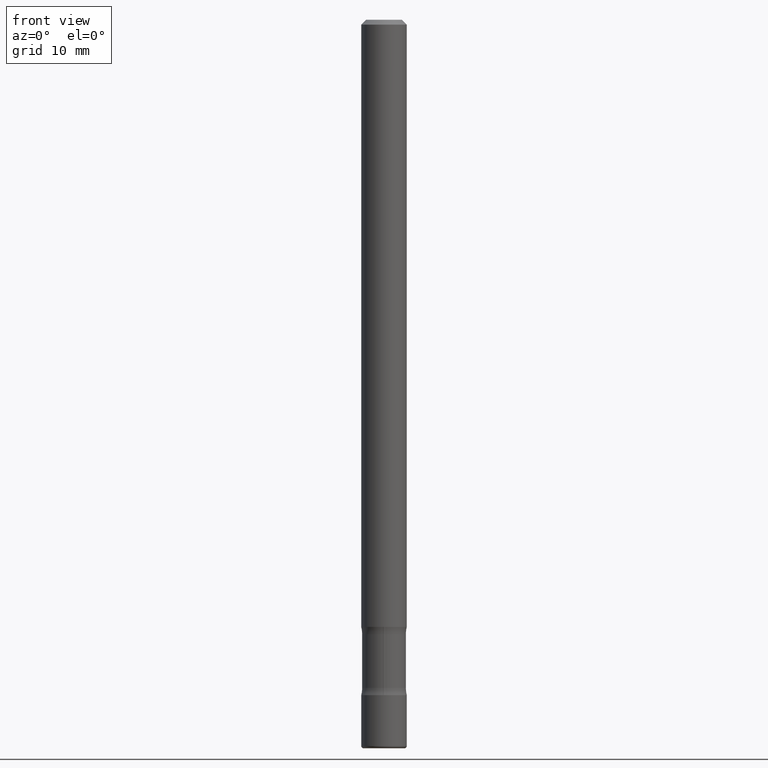
[diagram: clean part render]
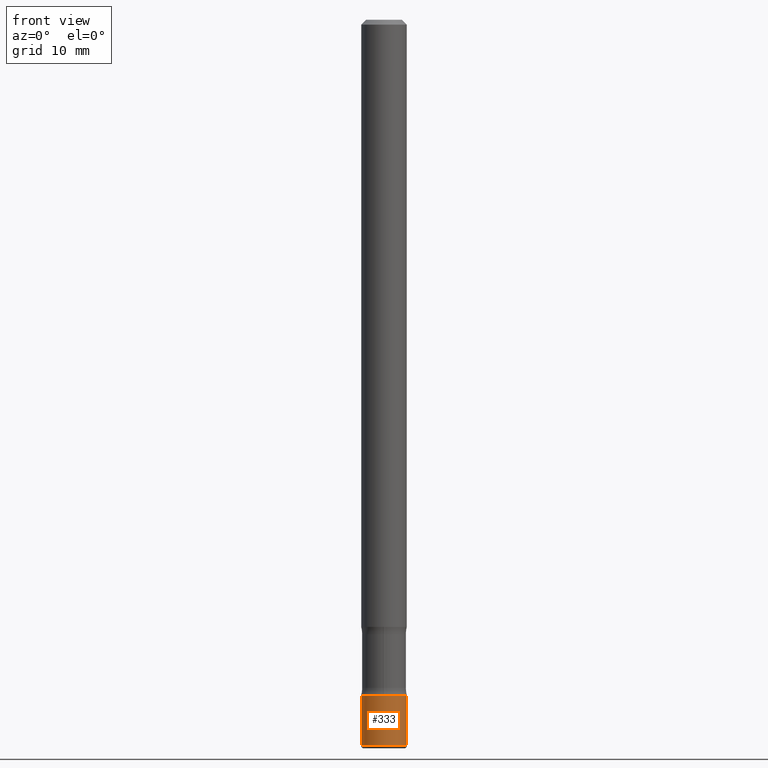
[diagram: same view with one face highlighted and labeled with its STEP entity id]
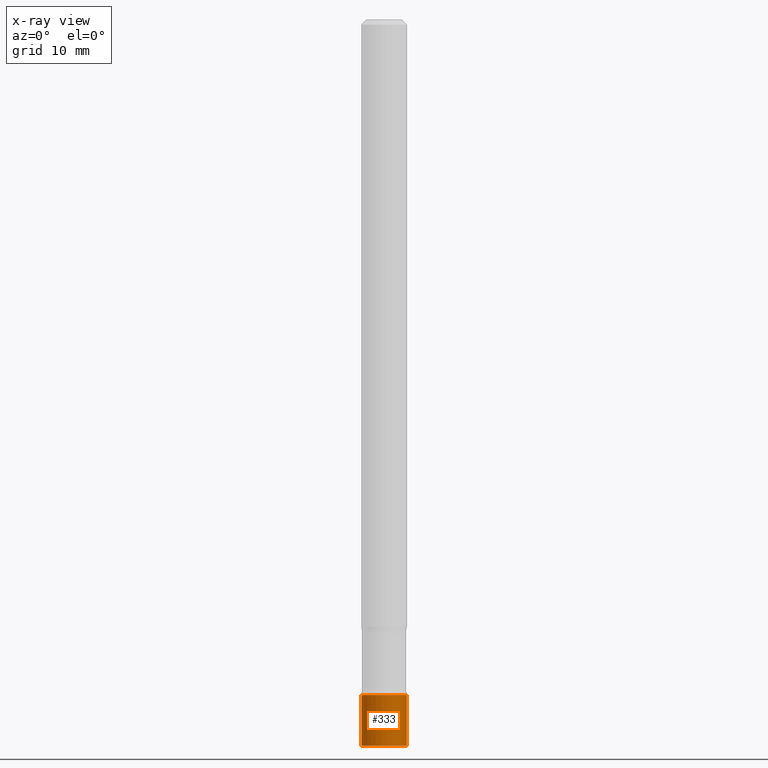
[diagram: x-ray of the same camera — body ghosted, the highlighted face saturated]
A machine part, front view. The second image highlights one B-rep face of the part: STEP entity #333.
The next image is the same camera in x-ray: the body ghosted, the highlighted face saturated — about 0% of this face is hidden behind the body in this view.
In plain terms, the highlighted cylindrical surface (edge-blend (fillet) strip) has radius 2.3813 mm, axis along (-0, 0, 1).
Its self-contained STEP definition (entity closure, byte-faithful):
#13 = CYLINDRICAL_SURFACE ( 'NONE', #571, 0.09375000000000002776 ) ;
#43 = DIRECTION ( 'NONE',  ( -2.445468806185136597E-29, 3.491481338843145583E-15, 1.000000000000000000 ) ) ;
#95 = ORIENTED_EDGE ( 'NONE', *, *, #590, .T. ) ;
#132 = CARTESIAN_POINT ( 'NONE',  ( 0.09375000000000005551, -1.109418195417409300E-14, -2.990000000000000213 ) ) ;
#165 = VERTEX_POINT ( 'NONE', #409 ) ;
#199 = EDGE_CURVE ( 'NONE', #165, #260, #726, .T. ) ;
#201 = DIRECTION ( 'NONE',  ( 1.000000000000000000, -6.982962677686265922E-15, 4.876176775795935793E-29 ) ) ;
#229 = VECTOR ( 'NONE', #531, 39.37007874015748143 ) ;
#252 = DIRECTION ( 'NONE',  ( -2.445468806185136597E-29, 3.491481338843145583E-15, 1.000000000000000000 ) ) ;
#259 = AXIS2_PLACEMENT_3D ( 'NONE', #629, #252, #310 ) ;
#260 = VERTEX_POINT ( 'NONE', #132 ) ;
#310 = DIRECTION ( 'NONE',  ( 1.000000000000000000, -6.982962677686261189E-15, 0.000000000000000000 ) ) ;
#319 = ORIENTED_EDGE ( 'NONE', *, *, #199, .T. ) ;
#320 = CARTESIAN_POINT ( 'NONE',  ( 0.000000000000000000, 0.000000000000000000, 0.000000000000000000 ) ) ;
#331 = CARTESIAN_POINT ( 'NONE',  ( -0.09375000000000002776, 6.661338147750941215E-16, -4.611501647113975397E-30 ) ) ;
#333 = ADVANCED_FACE ( 'NONE', ( #620 ), #13, .T. ) ;
#385 = AXIS2_PLACEMENT_3D ( 'NONE', #550, #43, #794 ) ;
#395 = DIRECTION ( 'NONE',  ( -2.445468806185136877E-29, 3.491481338843145188E-15, 1.000000000000000000 ) ) ;
#404 = CARTESIAN_POINT ( 'NONE',  ( -0.09375000000000001388, -9.408884736590688213E-15, -2.781200000000000561 ) ) ;
#409 = CARTESIAN_POINT ( 'NONE',  ( -0.09375000000000005551, -9.773395388365912358E-15, -2.990000000000000213 ) ) ;
#478 = VECTOR ( 'NONE', #395, 39.37007874015748143 ) ;
#490 = ORIENTED_EDGE ( 'NONE', *, *, #501, .F. ) ;
#501 = EDGE_CURVE ( 'NONE', #743, #675, #647, .T. ) ;
#502 = EDGE_LOOP ( 'NONE', ( #738, #319, #95, #490 ) ) ;
#503 = CARTESIAN_POINT ( 'NONE',  ( 0.09375000000000001388, -1.036516065062364471E-14, -2.781200000000000561 ) ) ;
#531 = DIRECTION ( 'NONE',  ( -2.445468806185136877E-29, 3.491481338843145188E-15, 1.000000000000000000 ) ) ;
#550 = CARTESIAN_POINT ( 'NONE',  ( 7.311951730493558245E-29, -1.043952920314100628E-14, -2.990000000000000213 ) ) ;
#571 = AXIS2_PLACEMENT_3D ( 'NONE', #320, #758, #201 ) ;
#590 = EDGE_CURVE ( 'NONE', #260, #675, #767, .T. ) ;
#620 = FACE_OUTER_BOUND ( 'NONE', #502, .T. ) ;
#629 = CARTESIAN_POINT ( 'NONE',  ( 6.801337843762102328E-29, -9.710507899590557993E-15, -2.781200000000000561 ) ) ;
#641 = CARTESIAN_POINT ( 'NONE',  ( 0.09375000000000002776, -6.546527510330876027E-16, 4.571415727308691207E-30 ) ) ;
#642 = LINE ( 'NONE', #331, #229 ) ;
#647 = CIRCLE ( 'NONE', #259, 0.09375000000000001388 ) ;
#675 = VERTEX_POINT ( 'NONE', #503 ) ;
#710 = EDGE_CURVE ( 'NONE', #165, #743, #642, .T. ) ;
#726 = CIRCLE ( 'NONE', #385, 0.09375000000000002776 ) ;
#738 = ORIENTED_EDGE ( 'NONE', *, *, #710, .F. ) ;
#743 = VERTEX_POINT ( 'NONE', #404 ) ;
#758 = DIRECTION ( 'NONE',  ( -2.445468806185136597E-29, 3.491481338843145583E-15, 1.000000000000000000 ) ) ;
#767 = LINE ( 'NONE', #641, #478 ) ;
#794 = DIRECTION ( 'NONE',  ( 1.000000000000000000, -6.982962677686260400E-15, 0.000000000000000000 ) ) ;